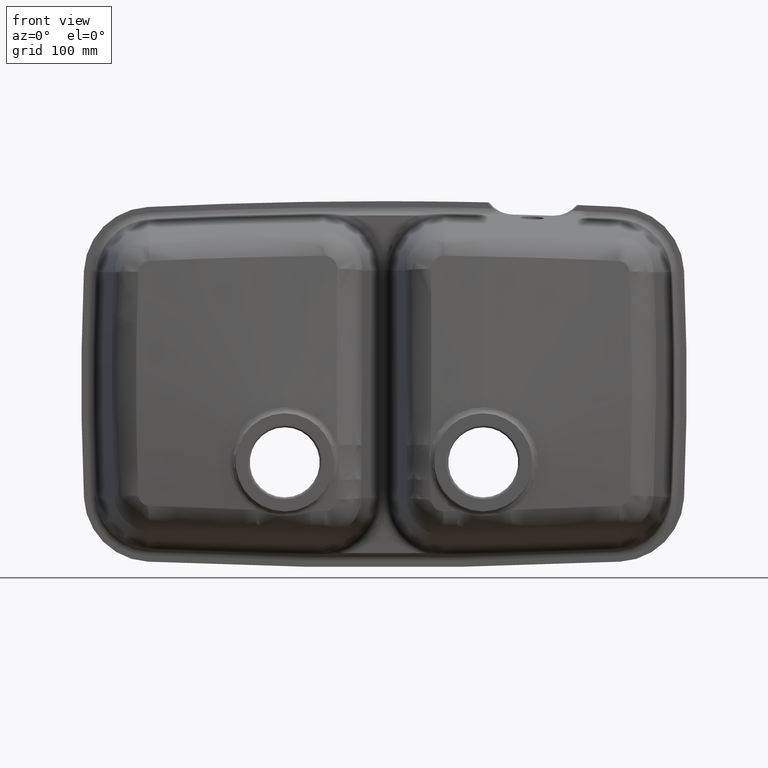
[diagram: clean part render]
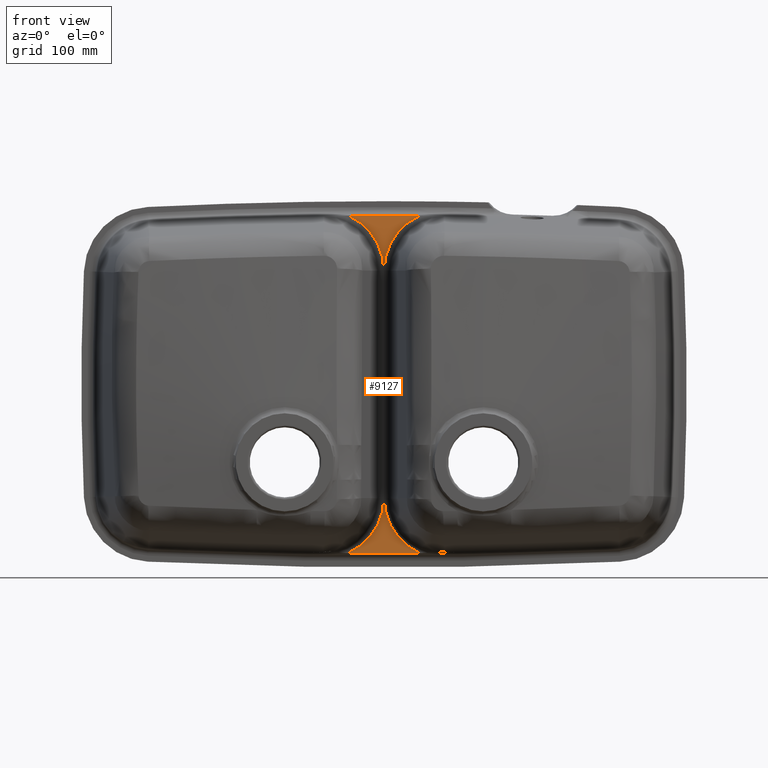
[diagram: same view with one face highlighted and labeled with its STEP entity id]
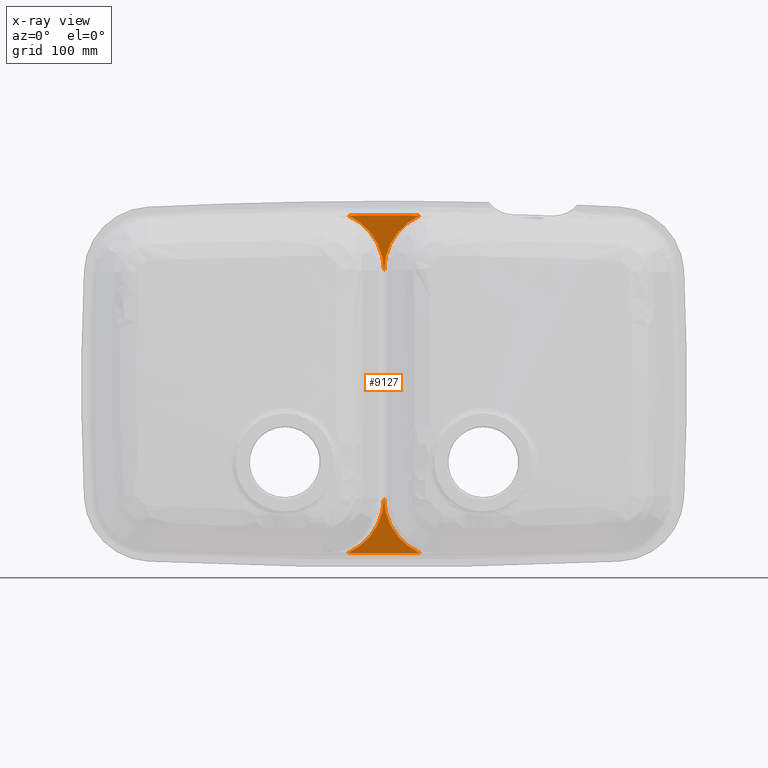
[diagram: x-ray of the same camera — body ghosted, the highlighted face saturated]
A machine part, front view. The second image highlights one B-rep face of the part: STEP entity #9127.
The next image is the same camera in x-ray: the body ghosted, the highlighted face saturated — about 0% of this face is hidden behind the body in this view.
In plain terms, the highlighted planar face has unit normal (0, 1, 0).
Its self-contained STEP definition (entity closure, byte-faithful):
#628 = AXIS2_PLACEMENT_3D ( 'NONE', #2643, #1156, #5090 ) ;
#1156 = DIRECTION ( 'NONE',  ( 0.0000000000000000000, 1.000000000000000000, 0.0000000000000000000 ) ) ;
#1426 = VERTEX_POINT ( 'NONE', #9753 ) ;
#1520 = DIRECTION ( 'NONE',  ( 9.592219879101576300E-014, 0.0000000000000000000, 1.000000000000000000 ) ) ;
#1593 = EDGE_LOOP ( 'NONE', ( #9556, #4485, #6467, #3386, #9776, #2105, #2718, #5486, #9047 ) ) ;
#1637 = DIRECTION ( 'NONE',  ( 9.425218243329454300E-017, -0.0000000000000000000, -1.000000000000000000 ) ) ;
#1834 = CARTESIAN_POINT ( 'NONE',  ( 229.7691898689450900, 198.8301353095726000, 219.0666645048678400 ) ) ;
#2053 = DIRECTION ( 'NONE',  ( 0.0000000000000000000, -0.0000000000000000000, 1.000000000000000000 ) ) ;
#2085 = CARTESIAN_POINT ( 'NONE',  ( 261.6106767295721100, 198.8301353095726000, -147.6775538111063200 ) ) ;
#2091 = EDGE_CURVE ( 'NONE', #1426, #8494, #5025, .T. ) ;
#2105 = ORIENTED_EDGE ( 'NONE', *, *, #2990, .T. ) ;
#2337 = EDGE_CURVE ( 'NONE', #5437, #7585, #6364, .T. ) ;
#2452 = CARTESIAN_POINT ( 'NONE',  ( 229.7691898689436400, 198.8301353095726000, -219.0562790025211700 ) ) ;
#2513 = CARTESIAN_POINT ( 'NONE',  ( 183.3015066558650400, 198.8301353095726000, -147.6775538111063200 ) ) ;
#2551 = VERTEX_POINT ( 'NONE', #9050 ) ;
#2643 = CARTESIAN_POINT ( 'NONE',  ( 105.1426767295720900, 198.8301353095726000, 147.6879393134511800 ) ) ;
#2679 = CIRCLE ( 'NONE', #6320, 78.15882992629312300 ) ;
#2718 = ORIENTED_EDGE ( 'NONE', *, *, #6332, .T. ) ;
#2763 = FACE_OUTER_BOUND ( 'NONE', #1593, .T. ) ;
#2888 = CARTESIAN_POINT ( 'NONE',  ( 136.9841635901990200, 198.8301353095726000, 219.0666645048678400 ) ) ;
#2982 = CARTESIAN_POINT ( 'NONE',  ( 183.3766767295748300, 198.8301353095726000, 6111.284192751170800 ) ) ;
#2990 = EDGE_CURVE ( 'NONE', #7585, #9914, #4279, .T. ) ;
#3330 = DIRECTION ( 'NONE',  ( -9.425218243329454300E-017, 0.0000000000000000000, -1.000000000000000000 ) ) ;
#3386 = ORIENTED_EDGE ( 'NONE', *, *, #9398, .F. ) ;
#3448 = EDGE_CURVE ( 'NONE', #4564, #2551, #4530, .T. ) ;
#3545 = VECTOR ( 'NONE', #3330, 1000.000000000000000 ) ;
#3550 = CARTESIAN_POINT ( 'NONE',  ( 183.3766767295733200, 198.8301353095726000, 219.2366582348324200 ) ) ;
#3563 = CARTESIAN_POINT ( 'NONE',  ( 183.3015066558652100, 198.8301353095726000, 147.6879393134511800 ) ) ;
#3645 = CIRCLE ( 'NONE', #628, 78.15882992629310900 ) ;
#3657 = DIRECTION ( 'NONE',  ( -0.0000000000000000000, -1.000000000000000000, -0.0000000000000000000 ) ) ;
#3679 = DIRECTION ( 'NONE',  ( 0.0000000000000000000, 0.0000000000000000000, 1.000000000000000000 ) ) ;
#3694 = VECTOR ( 'NONE', #1637, 1000.000000000000000 ) ;
#3818 = CARTESIAN_POINT ( 'NONE',  ( 136.9841635902004700, 198.8301353095726000, -219.0562790025211700 ) ) ;
#4279 = CIRCLE ( 'NONE', #5397, 6330.510465483661400 ) ;
#4485 = ORIENTED_EDGE ( 'NONE', *, *, #6832, .F. ) ;
#4491 = DIRECTION ( 'NONE',  ( -0.0000000000000000000, -1.000000000000000000, -0.0000000000000000000 ) ) ;
#4530 = LINE ( 'NONE', #2513, #3545 ) ;
#4564 = VERTEX_POINT ( 'NONE', #3563 ) ;
#4747 = DIRECTION ( 'NONE',  ( -0.0000000000000000000, -1.000000000000000000, -0.0000000000000000000 ) ) ;
#5025 = LINE ( 'NONE', #9331, #3694 ) ;
#5090 = DIRECTION ( 'NONE',  ( 0.0000000000000000000, 0.0000000000000000000, 1.000000000000000000 ) ) ;
#5097 = DIRECTION ( 'NONE',  ( 0.0000000000000000000, 0.0000000000000000000, 1.000000000000000000 ) ) ;
#5180 = CARTESIAN_POINT ( 'NONE',  ( 261.6106767295719900, 198.8301353095726000, 147.6879393134511800 ) ) ;
#5317 = DIRECTION ( 'NONE',  ( -0.0000000000000000000, -1.000000000000000000, -0.0000000000000000000 ) ) ;
#5397 = AXIS2_PLACEMENT_3D ( 'NONE', #7486, #4491, #3679 ) ;
#5437 = VERTEX_POINT ( 'NONE', #1834 ) ;
#5469 = EDGE_CURVE ( 'NONE', #2551, #7091, #2679, .T. ) ;
#5486 = ORIENTED_EDGE ( 'NONE', *, *, #3448, .T. ) ;
#5696 = AXIS2_PLACEMENT_3D ( 'NONE', #8307, #5999, #2053 ) ;
#5939 = CIRCLE ( 'NONE', #8506, 78.15882992629312300 ) ;
#5999 = DIRECTION ( 'NONE',  ( 0.0000000000000000000, 1.000000000000000000, 0.0000000000000000000 ) ) ;
#6028 = PLANE ( 'NONE',  #5696 ) ;
#6108 = AXIS2_PLACEMENT_3D ( 'NONE', #7782, #4747, #6272 ) ;
#6171 = DIRECTION ( 'NONE',  ( -0.0000000000000000000, -1.000000000000000000, -0.0000000000000000000 ) ) ;
#6272 = DIRECTION ( 'NONE',  ( -8.082227865954768000E-014, 0.0000000000000000000, 1.000000000000000000 ) ) ;
#6320 = AXIS2_PLACEMENT_3D ( 'NONE', #8245, #6692, #5097 ) ;
#6324 = CARTESIAN_POINT ( 'NONE',  ( 183.4518468032791200, 198.8301353095726000, -147.6775538111063200 ) ) ;
#6332 = EDGE_CURVE ( 'NONE', #9914, #4564, #3645, .T. ) ;
#6364 = CIRCLE ( 'NONE', #6108, 6330.510465483661400 ) ;
#6398 = AXIS2_PLACEMENT_3D ( 'NONE', #2982, #6171, #1520 ) ;
#6467 = ORIENTED_EDGE ( 'NONE', *, *, #2091, .F. ) ;
#6472 = EDGE_CURVE ( 'NONE', #7091, #8524, #10015, .T. ) ;
#6692 = DIRECTION ( 'NONE',  ( 0.0000000000000000000, 1.000000000000000000, 0.0000000000000000000 ) ) ;
#6832 = EDGE_CURVE ( 'NONE', #8494, #8524, #5939, .T. ) ;
#7091 = VERTEX_POINT ( 'NONE', #3818 ) ;
#7213 = AXIS2_PLACEMENT_3D ( 'NONE', #5180, #5317, #10059 ) ;
#7486 = CARTESIAN_POINT ( 'NONE',  ( 183.3766767295733200, 198.8301353095726000, -6111.273807248827300 ) ) ;
#7585 = VERTEX_POINT ( 'NONE', #3550 ) ;
#7782 = CARTESIAN_POINT ( 'NONE',  ( 183.3766767295733200, 198.8301353095726000, -6111.273807248827300 ) ) ;
#8245 = CARTESIAN_POINT ( 'NONE',  ( 105.1426767295720200, 198.8301353095726000, -147.6775538111063200 ) ) ;
#8307 = CARTESIAN_POINT ( 'NONE',  ( -0.5484482704251707500, 198.8301353095726000, 0.005192751172441902600 ) ) ;
#8384 = CIRCLE ( 'NONE', #7213, 78.15882992629310900 ) ;
#8494 = VERTEX_POINT ( 'NONE', #6324 ) ;
#8506 = AXIS2_PLACEMENT_3D ( 'NONE', #2085, #3657, #9121 ) ;
#8524 = VERTEX_POINT ( 'NONE', #2452 ) ;
#9047 = ORIENTED_EDGE ( 'NONE', *, *, #5469, .T. ) ;
#9050 = CARTESIAN_POINT ( 'NONE',  ( 183.3015066558650400, 198.8301353095726000, -147.6775538111063200 ) ) ;
#9121 = DIRECTION ( 'NONE',  ( 0.0000000000000000000, 0.0000000000000000000, 1.000000000000000000 ) ) ;
#9127 = ADVANCED_FACE ( 'NONE', ( #2763 ), #6028, .F. ) ;
#9331 = CARTESIAN_POINT ( 'NONE',  ( 183.4518468032791200, 198.8301353095726000, -147.6775538111063200 ) ) ;
#9398 = EDGE_CURVE ( 'NONE', #5437, #1426, #8384, .T. ) ;
#9556 = ORIENTED_EDGE ( 'NONE', *, *, #6472, .T. ) ;
#9753 = CARTESIAN_POINT ( 'NONE',  ( 183.4518468032789500, 198.8301353095726000, 147.6879393134511800 ) ) ;
#9776 = ORIENTED_EDGE ( 'NONE', *, *, #2337, .T. ) ;
#9914 = VERTEX_POINT ( 'NONE', #2888 ) ;
#10015 = CIRCLE ( 'NONE', #6398, 6330.510465483660500 ) ;
#10059 = DIRECTION ( 'NONE',  ( 0.0000000000000000000, 0.0000000000000000000, 1.000000000000000000 ) ) ;